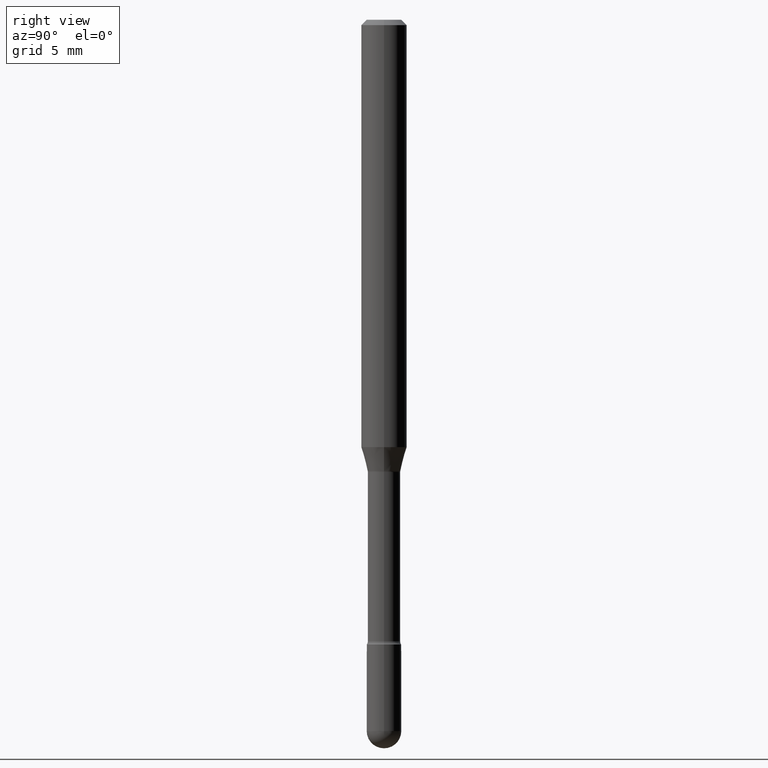
[diagram: clean part render]
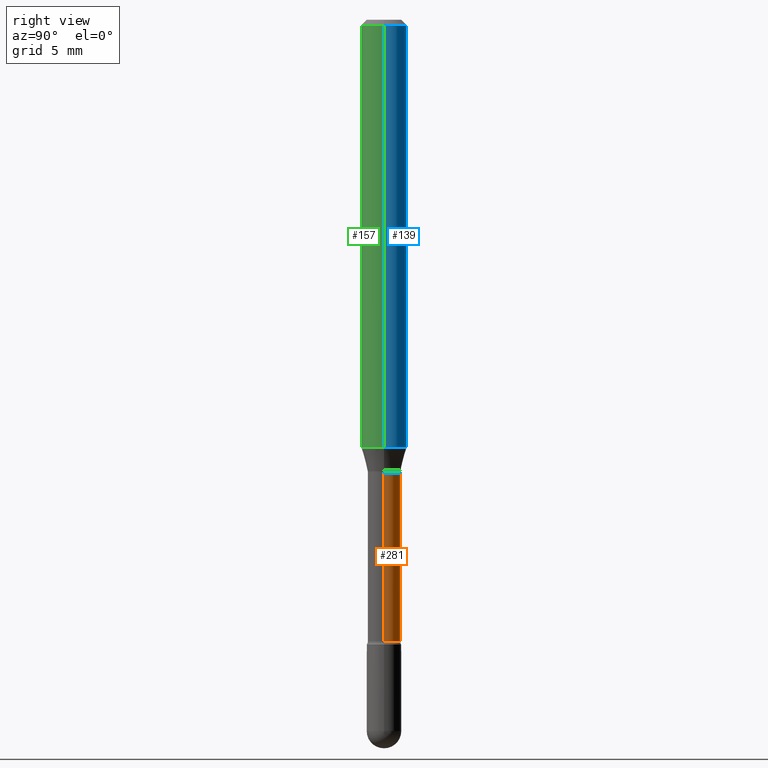
[diagram: same view with three faces highlighted in distinct colors, each labeled with its STEP entity id]
A machine part, right view with three faces highlighted in distinct colors.
Their STEP definitions:

[orange] entity #281 — the highlighted cylindrical surface (edge-blend (fillet) strip) has radius 1.1341 mm, axis along (-0, 0, 1).
#7 = ORIENTED_EDGE ( 'NONE', *, *, #349, .T. ) ;
#10 = DIRECTION ( 'NONE',  ( 1.000000000000000000, -6.982962677686271444E-15, 0.000000000000000000 ) ) ;
#15 = DIRECTION ( 'NONE',  ( -2.445468806185136877E-29, 3.491481338843145188E-15, 1.000000000000000000 ) ) ;
#25 = VERTEX_POINT ( 'NONE', #342 ) ;
#36 = VECTOR ( 'NONE', #460, 39.37007874015748143 ) ;
#44 = LINE ( 'NONE', #200, #79 ) ;
#47 = CARTESIAN_POINT ( 'NONE',  ( -1.169113584055446105E-44, 1.669184350826100908E-30, 4.780733988912460139E-16 ) ) ;
#79 = VECTOR ( 'NONE', #15, 39.37007874015748143 ) ;
#85 = CARTESIAN_POINT ( 'NONE',  ( -0.04464999999999999525, -4.829497496136509285E-15, -1.241974787463810959 ) ) ;
#104 = CARTESIAN_POINT ( 'NONE',  ( 3.037210600811164574E-29, -4.336331793743577757E-15, -1.241974787463810959 ) ) ;
#127 = ORIENTED_EDGE ( 'NONE', *, *, #250, .F. ) ;
#140 = VERTEX_POINT ( 'NONE', #85 ) ;
#145 = CARTESIAN_POINT ( 'NONE',  ( 0.04464999999999999525, -4.648121077302269339E-15, -1.241974787463810959 ) ) ;
#161 = ORIENTED_EDGE ( 'NONE', *, *, #229, .T. ) ;
#183 = CIRCLE ( 'NONE', #505, 0.04464999999999999525 ) ;
#194 = DIRECTION ( 'NONE',  ( -2.445468806185136597E-29, 3.491481338843145583E-15, 1.000000000000000000 ) ) ;
#200 = CARTESIAN_POINT ( 'NONE',  ( -0.04465000000000002994, 3.172573315168866221E-16, 4.780733988912438446E-16 ) ) ;
#201 = EDGE_LOOP ( 'NONE', ( #161, #7, #539, #127 ) ) ;
#206 = EDGE_CURVE ( 'NONE', #401, #140, #183, .T. ) ;
#216 = LINE ( 'NONE', #303, #36 ) ;
#229 = EDGE_CURVE ( 'NONE', #25, #466, #247, .T. ) ;
#232 = CYLINDRICAL_SURFACE ( 'NONE', #488, 0.04465000000000002994 ) ;
#247 = CIRCLE ( 'NONE', #566, 0.04465000000000005076 ) ;
#250 = EDGE_CURVE ( 'NONE', #25, #401, #216, .T. ) ;
#281 = ADVANCED_FACE ( 'NONE', ( #308 ), #232, .T. ) ;
#283 = DIRECTION ( 'NONE',  ( -2.445468806185136597E-29, 3.491481338843145583E-15, 1.000000000000000000 ) ) ;
#303 = CARTESIAN_POINT ( 'NONE',  ( 0.04465000000000002994, -3.117892835586902995E-16, 4.780733988912482819E-16 ) ) ;
#308 = FACE_OUTER_BOUND ( 'NONE', #201, .T. ) ;
#342 = CARTESIAN_POINT ( 'NONE',  ( 0.04465000000000005076, -6.268967145121902976E-15, -1.706203551853162859 ) ) ;
#349 = EDGE_CURVE ( 'NONE', #466, #140, #44, .T. ) ;
#356 = DIRECTION ( 'NONE',  ( -2.445468806185136597E-29, 3.491481338843145583E-15, 1.000000000000000000 ) ) ;
#401 = VERTEX_POINT ( 'NONE', #145 ) ;
#417 = CARTESIAN_POINT ( 'NONE',  ( -0.04465000000000005076, -5.645151613338136255E-15, -1.706203551853162859 ) ) ;
#443 = CARTESIAN_POINT ( 'NONE',  ( 4.172467563059193299E-29, -5.957177861563210606E-15, -1.706203551853162859 ) ) ;
#450 = DIRECTION ( 'NONE',  ( 1.000000000000000000, -6.982962677686269077E-15, 0.000000000000000000 ) ) ;
#460 = DIRECTION ( 'NONE',  ( -2.445468806185136877E-29, 3.491481338843145188E-15, 1.000000000000000000 ) ) ;
#466 = VERTEX_POINT ( 'NONE', #417 ) ;
#476 = DIRECTION ( 'NONE',  ( 1.000000000000000000, -6.982962677686266711E-15, 4.890776238491183623E-29 ) ) ;
#488 = AXIS2_PLACEMENT_3D ( 'NONE', #47, #194, #476 ) ;
#505 = AXIS2_PLACEMENT_3D ( 'NONE', #104, #283, #450 ) ;
#539 = ORIENTED_EDGE ( 'NONE', *, *, #206, .F. ) ;
#566 = AXIS2_PLACEMENT_3D ( 'NONE', #443, #356, #10 ) ;

[blue] entity #139 — the highlighted cylindrical surface (edge-blend (fillet) strip) has radius 1.5875 mm, axis along (-0, 0, 1).
#21 = VERTEX_POINT ( 'NONE', #165 ) ;
#33 = ORIENTED_EDGE ( 'NONE', *, *, #481, .F. ) ;
#39 = CARTESIAN_POINT ( 'NONE',  ( 2.869471262750380968E-29, -4.096844474523694177E-15, -1.173382893084895295 ) ) ;
#53 = DIRECTION ( 'NONE',  ( 1.000000000000000000, -6.982962677686266711E-15, 4.852736867747366207E-29 ) ) ;
#65 = CARTESIAN_POINT ( 'NONE',  ( -0.06250000000000000000, 4.440892098500642925E-16, 4.780733988912429571E-16 ) ) ;
#68 = VERTEX_POINT ( 'NONE', #230 ) ;
#76 = EDGE_CURVE ( 'NONE', #68, #366, #480, .T. ) ;
#87 = DIRECTION ( 'NONE',  ( 1.000000000000000000, -6.982962677686262766E-15, 0.000000000000000000 ) ) ;
#120 = CARTESIAN_POINT ( 'NONE',  ( 3.668203209277725232E-31, -5.237222008264747365E-17, -0.01500000000000008271 ) ) ;
#126 = LINE ( 'NONE', #65, #262 ) ;
#138 = CARTESIAN_POINT ( 'NONE',  ( 0.06250000000000000000, -4.888073874380391431E-16, -0.01500000000000008271 ) ) ;
#139 = ADVANCED_FACE ( 'NONE', ( #487 ), #241, .T. ) ;
#152 = DIRECTION ( 'NONE',  ( -2.445468806185136597E-29, 3.491481338843145583E-15, 1.000000000000000000 ) ) ;
#165 = CARTESIAN_POINT ( 'NONE',  ( -0.06250000000000000000, -3.652755264673631561E-15, -1.173382893084895295 ) ) ;
#187 = CARTESIAN_POINT ( 'NONE',  ( 0.06250000000000000000, -4.364351673553899931E-16, 4.780733988912490708E-16 ) ) ;
#202 = AXIS2_PLACEMENT_3D ( 'NONE', #120, #152, #458 ) ;
#215 = EDGE_LOOP ( 'NONE', ( #486, #362, #33, #441 ) ) ;
#230 = CARTESIAN_POINT ( 'NONE',  ( 0.06250000000000000000, -4.533279641879085846E-15, -1.173382893084895295 ) ) ;
#241 = CYLINDRICAL_SURFACE ( 'NONE', #519, 0.06250000000000000000 ) ;
#262 = VECTOR ( 'NONE', #378, 39.37007874015748143 ) ;
#264 = EDGE_CURVE ( 'NONE', #68, #21, #456, .T. ) ;
#291 = AXIS2_PLACEMENT_3D ( 'NONE', #39, #482, #87 ) ;
#320 = DIRECTION ( 'NONE',  ( -2.445468806185136877E-29, 3.491481338843145188E-15, 1.000000000000000000 ) ) ;
#362 = ORIENTED_EDGE ( 'NONE', *, *, #557, .T. ) ;
#366 = VERTEX_POINT ( 'NONE', #138 ) ;
#378 = DIRECTION ( 'NONE',  ( -2.445468806185136877E-29, 3.491481338843145188E-15, 1.000000000000000000 ) ) ;
#409 = CARTESIAN_POINT ( 'NONE',  ( -1.169113584055446105E-44, 1.669184350826100908E-30, 4.780733988912460139E-16 ) ) ;
#438 = CIRCLE ( 'NONE', #202, 0.06250000000000000000 ) ;
#441 = ORIENTED_EDGE ( 'NONE', *, *, #76, .F. ) ;
#449 = DIRECTION ( 'NONE',  ( -2.445468806185136597E-29, 3.491481338843145583E-15, 1.000000000000000000 ) ) ;
#456 = CIRCLE ( 'NONE', #291, 0.06250000000000000000 ) ;
#458 = DIRECTION ( 'NONE',  ( 1.000000000000000000, -6.982962677686266711E-15, 0.000000000000000000 ) ) ;
#464 = CARTESIAN_POINT ( 'NONE',  ( -0.06250000000000000000, -1.630519137453108406E-15, -0.01500000000000008271 ) ) ;
#480 = LINE ( 'NONE', #187, #530 ) ;
#481 = EDGE_CURVE ( 'NONE', #366, #550, #438, .T. ) ;
#482 = DIRECTION ( 'NONE',  ( -2.445468806185136597E-29, 3.491481338843145583E-15, 1.000000000000000000 ) ) ;
#486 = ORIENTED_EDGE ( 'NONE', *, *, #264, .T. ) ;
#487 = FACE_OUTER_BOUND ( 'NONE', #215, .T. ) ;
#519 = AXIS2_PLACEMENT_3D ( 'NONE', #409, #449, #53 ) ;
#530 = VECTOR ( 'NONE', #320, 39.37007874015748143 ) ;
#550 = VERTEX_POINT ( 'NONE', #464 ) ;
#557 = EDGE_CURVE ( 'NONE', #21, #550, #126, .T. ) ;

[green] entity #157 — the highlighted cylindrical surface (edge-blend (fillet) strip) has radius 1.5875 mm, axis along (-0, 0, 1).
#21 = VERTEX_POINT ( 'NONE', #165 ) ;
#46 = FACE_OUTER_BOUND ( 'NONE', #334, .T. ) ;
#64 = DIRECTION ( 'NONE',  ( 1.000000000000000000, -6.982962677686266711E-15, 0.000000000000000000 ) ) ;
#65 = CARTESIAN_POINT ( 'NONE',  ( -0.06250000000000000000, 4.440892098500642925E-16, 4.780733988912429571E-16 ) ) ;
#68 = VERTEX_POINT ( 'NONE', #230 ) ;
#71 = ORIENTED_EDGE ( 'NONE', *, *, #259, .F. ) ;
#76 = EDGE_CURVE ( 'NONE', #68, #366, #480, .T. ) ;
#96 = ORIENTED_EDGE ( 'NONE', *, *, #76, .T. ) ;
#125 = DIRECTION ( 'NONE',  ( -2.445468806185136597E-29, 3.491481338843145583E-15, 1.000000000000000000 ) ) ;
#126 = LINE ( 'NONE', #65, #262 ) ;
#138 = CARTESIAN_POINT ( 'NONE',  ( 0.06250000000000000000, -4.888073874380391431E-16, -0.01500000000000008271 ) ) ;
#157 = ADVANCED_FACE ( 'NONE', ( #46 ), #327, .T. ) ;
#165 = CARTESIAN_POINT ( 'NONE',  ( -0.06250000000000000000, -3.652755264673631561E-15, -1.173382893084895295 ) ) ;
#173 = CIRCLE ( 'NONE', #405, 0.06250000000000000000 ) ;
#187 = CARTESIAN_POINT ( 'NONE',  ( 0.06250000000000000000, -4.364351673553899931E-16, 4.780733988912490708E-16 ) ) ;
#193 = CARTESIAN_POINT ( 'NONE',  ( -1.169113584055446105E-44, 1.669184350826100908E-30, 4.780733988912460139E-16 ) ) ;
#230 = CARTESIAN_POINT ( 'NONE',  ( 0.06250000000000000000, -4.533279641879085846E-15, -1.173382893084895295 ) ) ;
#237 = DIRECTION ( 'NONE',  ( 1.000000000000000000, -6.982962677686266711E-15, 4.852736867747366207E-29 ) ) ;
#246 = AXIS2_PLACEMENT_3D ( 'NONE', #193, #364, #237 ) ;
#259 = EDGE_CURVE ( 'NONE', #550, #366, #287, .T. ) ;
#262 = VECTOR ( 'NONE', #378, 39.37007874015748143 ) ;
#287 = CIRCLE ( 'NONE', #533, 0.06250000000000000000 ) ;
#319 = DIRECTION ( 'NONE',  ( -2.445468806185136597E-29, 3.491481338843145583E-15, 1.000000000000000000 ) ) ;
#320 = DIRECTION ( 'NONE',  ( -2.445468806185136877E-29, 3.491481338843145188E-15, 1.000000000000000000 ) ) ;
#327 = CYLINDRICAL_SURFACE ( 'NONE', #246, 0.06250000000000000000 ) ;
#334 = EDGE_LOOP ( 'NONE', ( #516, #498, #96, #71 ) ) ;
#340 = EDGE_CURVE ( 'NONE', #21, #68, #173, .T. ) ;
#364 = DIRECTION ( 'NONE',  ( -2.445468806185136597E-29, 3.491481338843145583E-15, 1.000000000000000000 ) ) ;
#366 = VERTEX_POINT ( 'NONE', #138 ) ;
#378 = DIRECTION ( 'NONE',  ( -2.445468806185136877E-29, 3.491481338843145188E-15, 1.000000000000000000 ) ) ;
#400 = CARTESIAN_POINT ( 'NONE',  ( 2.869471262750380968E-29, -4.096844474523694177E-15, -1.173382893084895295 ) ) ;
#405 = AXIS2_PLACEMENT_3D ( 'NONE', #400, #319, #501 ) ;
#464 = CARTESIAN_POINT ( 'NONE',  ( -0.06250000000000000000, -1.630519137453108406E-15, -0.01500000000000008271 ) ) ;
#480 = LINE ( 'NONE', #187, #530 ) ;
#498 = ORIENTED_EDGE ( 'NONE', *, *, #340, .T. ) ;
#501 = DIRECTION ( 'NONE',  ( 1.000000000000000000, -6.982962677686262766E-15, 0.000000000000000000 ) ) ;
#516 = ORIENTED_EDGE ( 'NONE', *, *, #557, .F. ) ;
#530 = VECTOR ( 'NONE', #320, 39.37007874015748143 ) ;
#533 = AXIS2_PLACEMENT_3D ( 'NONE', #551, #125, #64 ) ;
#550 = VERTEX_POINT ( 'NONE', #464 ) ;
#551 = CARTESIAN_POINT ( 'NONE',  ( 3.668203209277725232E-31, -5.237222008264747365E-17, -0.01500000000000008271 ) ) ;
#557 = EDGE_CURVE ( 'NONE', #21, #550, #126, .T. ) ;